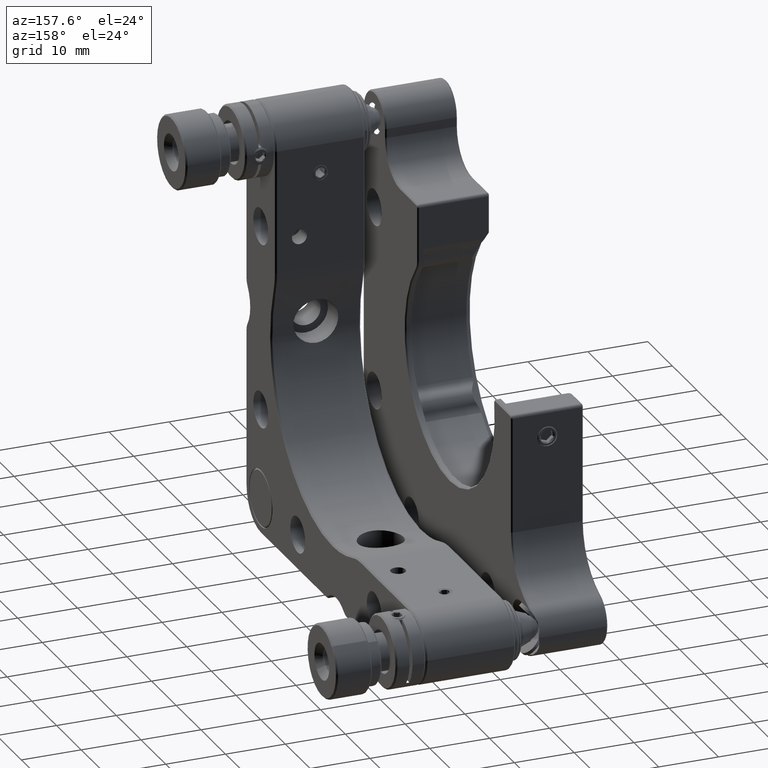
[diagram: clean part render]
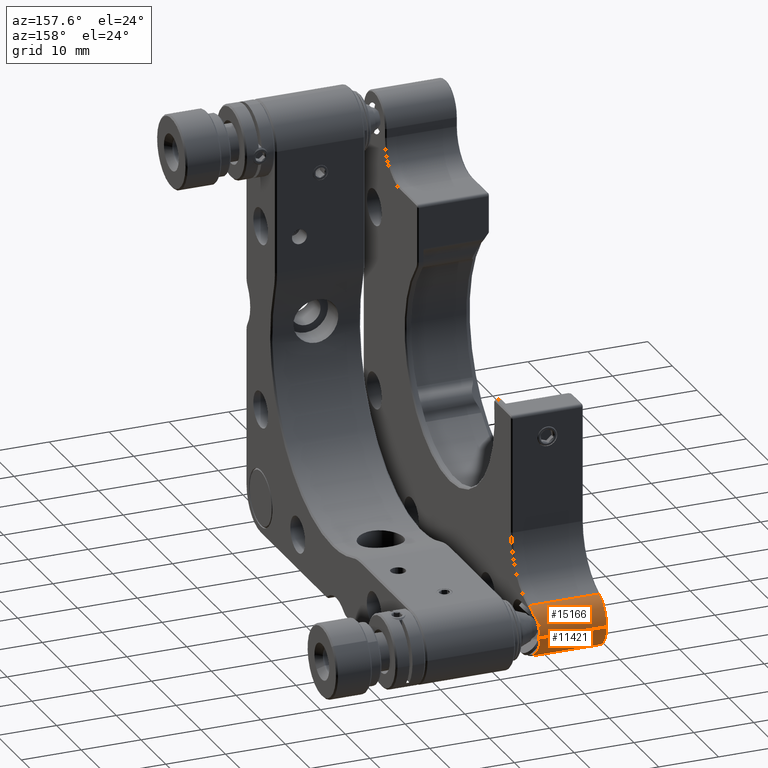
[diagram: same view with one multi-face feature highlighted, each face labeled with its STEP entity id]
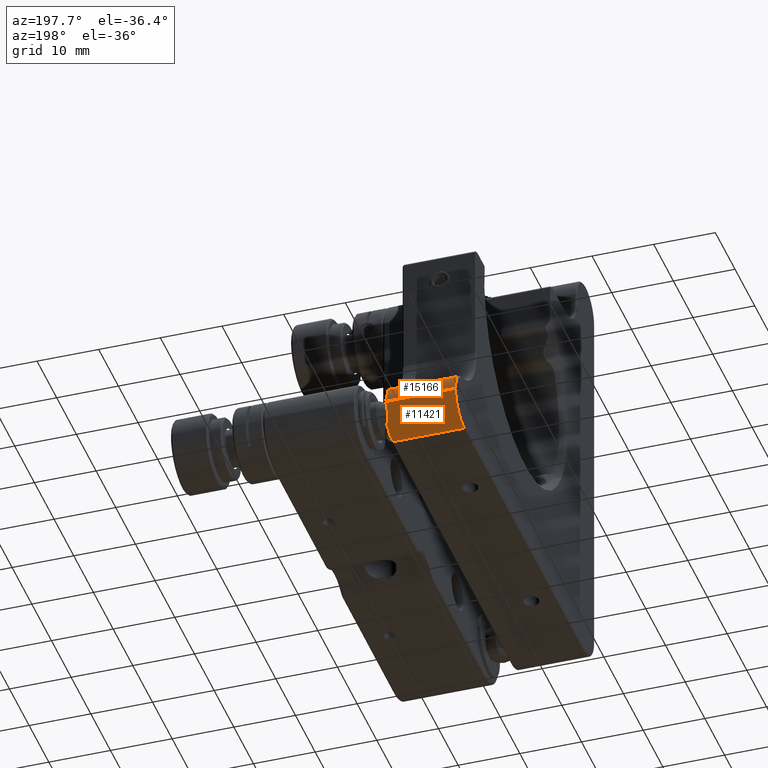
[diagram: same view with one multi-face feature highlighted, each face labeled with its STEP entity id]
A machine part, auxiliary view. The highlighted faces form ONE feature: a constant-radius fillet chain: 2 tangent blend faces with common blend radius 4.5 mm. The faces share edges in the B-rep.
A second angle (auxiliary view) of the same feature is appended — it is thin or edge-on in the first view.
Their STEP definitions:
[1] entity #11421 (Cylinder):
#1179 = CARTESIAN_POINT ( 'NONE',  ( -4.969915169746157879, 32.83099003521454051, 18.85354217601186377 ) ) ;
#1407 = DIRECTION ( 'NONE',  ( -1.000000000000000000, 0.000000000000000000, 0.000000000000000000 ) ) ;
#1477 = CARTESIAN_POINT ( 'NONE',  ( -4.970900697152769609, 33.68292862304677726, 21.50000000000000711 ) ) ;
#2343 = CARTESIAN_POINT ( 'NONE',  ( -4.970900697152769609, 33.68292862304677726, 21.50000000000000711 ) ) ;
#2441 = CARTESIAN_POINT ( 'NONE',  ( -4.670900697152780445, 29.18292862304677726, 21.50000000000000711 ) ) ;
#2664 = CARTESIAN_POINT ( 'NONE',  ( -5.094182898892031019, 33.22991680609042220, 19.51532868438908253 ) ) ;
#2730 = B_SPLINE_CURVE_WITH_KNOTS ( 'NONE', 3,
 ( #13257, #6105, #9784, #1179, #3747, #2664, #4781, #5950, #3594, #7207 ),
 .UNSPECIFIED., .F., .F.,
 ( 4, 2, 2, 2, 4 ),
 ( 5.843079896245652824E-07, 0.0007739095250426000338, 0.001547234742095575507, 0.002320559959148551198, 0.003093885176201526671 ),
 .UNSPECIFIED. ) ;
#2855 = DIRECTION ( 'NONE',  ( 1.000000000000000000, -0.000000000000000000, -0.000000000000000000 ) ) ;
#3438 = CARTESIAN_POINT ( 'NONE',  ( -5.033840859828053738, 33.61998846037148780, 20.75000000000002842 ) ) ;
#3594 = CARTESIAN_POINT ( 'NONE',  ( -5.076993765568806438, 33.57683555463074043, 20.49470396676516515 ) ) ;
#3612 = ORIENTED_EDGE ( 'NONE', *, *, #12394, .T. ) ;
#3747 = CARTESIAN_POINT ( 'NONE',  ( -5.023551513224647991, 32.97558825124925619, 19.06427289514881807 ) ) ;
#3790 = VERTEX_POINT ( 'NONE', #1477 ) ;
#3920 = VERTEX_POINT ( 'NONE', #15190 ) ;
#4318 = DIRECTION ( 'NONE',  ( 1.000000000000000000, 0.000000000000000000, 0.000000000000000000 ) ) ;
#4361 = ORIENTED_EDGE ( 'NONE', *, *, #10954, .F. ) ;
#4781 = CARTESIAN_POINT ( 'NONE',  ( -5.110431024929194876, 33.33700272123084574, 19.75039737068624035 ) ) ;
#4951 = CARTESIAN_POINT ( 'NONE',  ( -5.033840859828053738, 33.61998846037148780, 20.75000000000002842 ) ) ;
#5470 = CARTESIAN_POINT ( 'NONE',  ( -4.470900697152771386, 33.68292862304677726, 21.50000000000000711 ) ) ;
#5950 = CARTESIAN_POINT ( 'NONE',  ( -5.102085919970350325, 33.51069300779657567, 20.23988238493522118 ) ) ;
#6079 = CARTESIAN_POINT ( 'NONE',  ( -4.670900697152780445, 32.16093782629405951, 18.12635787532607168 ) ) ;
#6105 = CARTESIAN_POINT ( 'NONE',  ( -4.759126002802712918, 32.34557114717730286, 18.28933892325495947 ) ) ;
#6111 = ORIENTED_EDGE ( 'NONE', *, *, #12669, .F. ) ;
#6270 = DIRECTION ( 'NONE',  ( 0.000000000000000000, 0.000000000000000000, 1.000000000000000000 ) ) ;
#6406 = CARTESIAN_POINT ( 'NONE',  ( -4.670900697152780445, 29.18292862304677726, 17.00000000000000711 ) ) ;
#6425 = DIRECTION ( 'NONE',  ( -1.000000000000000000, 0.000000000000000000, 0.000000000000000000 ) ) ;
#6457 = VERTEX_POINT ( 'NONE', #10929 ) ;
#6907 = EDGE_CURVE ( 'NONE', #3790, #3920, #12688, .T. ) ;
#7207 = CARTESIAN_POINT ( 'NONE',  ( -5.033840859828053738, 33.61998846037148780, 20.75000000000002842 ) ) ;
#7362 = DIRECTION ( 'NONE',  ( 0.000000000000000000, 0.000000000000000000, 1.000000000000000000 ) ) ;
#7549 = LINE ( 'NONE', #7855, #13459 ) ;
#7855 = CARTESIAN_POINT ( 'NONE',  ( -4.470900697152771386, 29.18292862304677726, 17.00000000000000711 ) ) ;
#7958 = AXIS2_PLACEMENT_3D ( 'NONE', #13412, #1407, #7362 ) ;
#8528 = CARTESIAN_POINT ( 'NONE',  ( -4.991929858824035726, 33.66189946137551914, 20.99794882572938448 ) ) ;
#8792 = AXIS2_PLACEMENT_3D ( 'NONE', #10581, #4318, #15371 ) ;
#9384 = CIRCLE ( 'NONE', #11904, 4.500000000000000888 ) ;
#9549 = EDGE_CURVE ( 'NONE', #6457, #3920, #11807, .T. ) ;
#9551 = CYLINDRICAL_SURFACE ( 'NONE', #7958, 4.500000000000000888 ) ;
#9784 = CARTESIAN_POINT ( 'NONE',  ( -4.837839540645553882, 32.51649543658120933, 18.46694487672950657 ) ) ;
#9828 = EDGE_LOOP ( 'NONE', ( #6111, #12411, #3612, #4361, #11746, #13592 ) ) ;
#10120 = VERTEX_POINT ( 'NONE', #4951 ) ;
#10581 = CARTESIAN_POINT ( 'NONE',  ( -16.27090069715276499, 29.18292862304677726, 21.50000000000000711 ) ) ;
#10624 = VERTEX_POINT ( 'NONE', #6406 ) ;
#10885 = FACE_OUTER_BOUND ( 'NONE', #9828, .T. ) ;
#10929 = CARTESIAN_POINT ( 'NONE',  ( -16.27090069715276499, 29.18292862304677726, 17.00000000000000711 ) ) ;
#10954 = EDGE_CURVE ( 'NONE', #6457, #10624, #7549, .T. ) ;
#11421 = ADVANCED_FACE ( 'NONE', ( #10885 ), #9551, .T. ) ;
#11422 = EDGE_CURVE ( 'NONE', #11672, #10120, #2730, .T. ) ;
#11672 = VERTEX_POINT ( 'NONE', #6079 ) ;
#11746 = ORIENTED_EDGE ( 'NONE', *, *, #9549, .T. ) ;
#11807 = CIRCLE ( 'NONE', #8792, 4.500000000000000888 ) ;
#11904 = AXIS2_PLACEMENT_3D ( 'NONE', #2441, #6425, #6270 ) ;
#12394 = EDGE_CURVE ( 'NONE', #11672, #10624, #9384, .T. ) ;
#12411 = ORIENTED_EDGE ( 'NONE', *, *, #11422, .F. ) ;
#12669 = EDGE_CURVE ( 'NONE', #10120, #3790, #12835, .T. ) ;
#12688 = LINE ( 'NONE', #5470, #15223 ) ;
#12835 =( BOUNDED_CURVE ( )  B_SPLINE_CURVE ( 3, ( #3438, #8528, #15365, #2343 ),
 .UNSPECIFIED., .F., .T. ) 
 B_SPLINE_CURVE_WITH_KNOTS ( ( 4, 4 ),
 ( 2.974144574370108263, 3.141592653589793116 ),
 .UNSPECIFIED. ) 
 CURVE ( )  GEOMETRIC_REPRESENTATION_ITEM ( )  RATIONAL_B_SPLINE_CURVE ( ( 1.000000000000000000, 0.9976647929699735684, 0.9976647929699735684, 1.000000000000000000 ) ) 
 REPRESENTATION_ITEM ( '' )  );
#13257 = CARTESIAN_POINT ( 'NONE',  ( -4.670900697152780445, 32.16093782629405951, 18.12635787532607168 ) ) ;
#13412 = CARTESIAN_POINT ( 'NONE',  ( -4.470900697152771386, 29.18292862304677726, 21.50000000000000711 ) ) ;
#13459 = VECTOR ( 'NONE', #2855, 1000.000000000000000 ) ;
#13592 = ORIENTED_EDGE ( 'NONE', *, *, #6907, .F. ) ;
#15185 = DIRECTION ( 'NONE',  ( -1.000000000000000000, 0.000000000000000000, 0.000000000000000000 ) ) ;
#15190 = CARTESIAN_POINT ( 'NONE',  ( -16.27090069715276499, 33.68292862304677726, 21.50000000000000711 ) ) ;
#15223 = VECTOR ( 'NONE', #15185, 1000.000000000000000 ) ;
#15365 = CARTESIAN_POINT ( 'NONE',  ( -4.970900697152769609, 33.68292862304678437, 21.24853399397588660 ) ) ;
#15371 = DIRECTION ( 'NONE',  ( 0.000000000000000000, 0.000000000000000000, 1.000000000000000000 ) ) ;
[2] entity #15166 (Cylinder):
#140 = EDGE_CURVE ( 'NONE', #3920, #9457, #7156, .T. ) ;
#628 = EDGE_LOOP ( 'NONE', ( #15214, #9987, #5144, #7327, #4432, #15428 ) ) ;
#630 = CARTESIAN_POINT ( 'NONE',  ( -5.033840859828057290, 33.61998846037148780, 22.24999999999998579 ) ) ;
#661 = VECTOR ( 'NONE', #4510, 1000.000000000000000 ) ;
#944 = CIRCLE ( 'NONE', #9699, 4.500000000000000888 ) ;
#992 = EDGE_CURVE ( 'NONE', #9457, #6167, #4591, .T. ) ;
#1477 = CARTESIAN_POINT ( 'NONE',  ( -4.970900697152769609, 33.68292862304677726, 21.50000000000000711 ) ) ;
#2014 = CARTESIAN_POINT ( 'NONE',  ( -4.670900697152780445, 29.18292862304677726, 21.49999999999999645 ) ) ;
#2131 = VERTEX_POINT ( 'NONE', #12906 ) ;
#2371 = DIRECTION ( 'NONE',  ( -1.000000000000000000, 0.000000000000000000, 0.000000000000000000 ) ) ;
#3605 =( BOUNDED_CURVE ( )  B_SPLINE_CURVE ( 3, ( #12390, #6568, #11356, #630 ),
 .UNSPECIFIED., .F., .T. ) 
 B_SPLINE_CURVE_WITH_KNOTS ( ( 4, 4 ),
 ( 3.141592653589796225, 3.309040732809480190 ),
 .UNSPECIFIED. ) 
 CURVE ( )  GEOMETRIC_REPRESENTATION_ITEM ( )  RATIONAL_B_SPLINE_CURVE ( ( 1.000000000000000000, 0.9976647929699735684, 0.9976647929699735684, 1.000000000000000000 ) ) 
 REPRESENTATION_ITEM ( '' )  );
#3616 = DIRECTION ( 'NONE',  ( 0.000000000000000000, 0.000000000000000000, 1.000000000000000000 ) ) ;
#3790 = VERTEX_POINT ( 'NONE', #1477 ) ;
#3920 = VERTEX_POINT ( 'NONE', #15190 ) ;
#4365 = CARTESIAN_POINT ( 'NONE',  ( -4.847337455431588893, 32.53017547718014413, 24.54770561988522815 ) ) ;
#4432 = ORIENTED_EDGE ( 'NONE', *, *, #992, .T. ) ;
#4510 = DIRECTION ( 'NONE',  ( 1.000000000000000000, -0.000000000000000000, -0.000000000000000000 ) ) ;
#4591 = LINE ( 'NONE', #5533, #661 ) ;
#4693 = DIRECTION ( 'NONE',  ( -1.000000000000000000, 0.000000000000000000, 0.000000000000000000 ) ) ;
#4800 = DIRECTION ( 'NONE',  ( 0.000000000000000000, 1.541976423090494844E-15, 1.000000000000000000 ) ) ;
#4805 = CARTESIAN_POINT ( 'NONE',  ( -4.470900697152771386, 29.18292862304677726, 21.49999999999999645 ) ) ;
#5144 = ORIENTED_EDGE ( 'NONE', *, *, #6907, .T. ) ;
#5469 = CARTESIAN_POINT ( 'NONE',  ( -5.076898368771277426, 33.57693095142826678, 22.50473165816961085 ) ) ;
#5470 = CARTESIAN_POINT ( 'NONE',  ( -4.470900697152771386, 33.68292862304677726, 21.50000000000000711 ) ) ;
#5533 = CARTESIAN_POINT ( 'NONE',  ( -4.470900697152771386, 30.59499758856401286, 25.77271122785322888 ) ) ;
#6167 = VERTEX_POINT ( 'NONE', #12138 ) ;
#6224 = EDGE_CURVE ( 'NONE', #2131, #10418, #7435, .T. ) ;
#6568 = CARTESIAN_POINT ( 'NONE',  ( -4.970900697152770498, 33.68292862304678437, 21.75146600602413116 ) ) ;
#6575 = CARTESIAN_POINT ( 'NONE',  ( -4.670900697152780445, 32.16093782629403819, 24.87364212467394609 ) ) ;
#6907 = EDGE_CURVE ( 'NONE', #3790, #3920, #12688, .T. ) ;
#6957 = DIRECTION ( 'NONE',  ( 0.000000000000000000, 0.000000000000000000, 1.000000000000000000 ) ) ;
#7156 = CIRCLE ( 'NONE', #13187, 4.500000000000000888 ) ;
#7327 = ORIENTED_EDGE ( 'NONE', *, *, #140, .T. ) ;
#7435 = B_SPLINE_CURVE_WITH_KNOTS ( 'NONE', 3,
 ( #15101, #5469, #11646, #11414, #14953, #15022, #4365, #9133 ),
 .UNSPECIFIED., .F., .F.,
 ( 4, 2, 2, 4 ),
 ( 2.027171842242324716E-07, 0.0007747843937992246076, 0.001549366070414224953, 0.003098529423644215235 ),
 .UNSPECIFIED. ) ;
#8559 = CARTESIAN_POINT ( 'NONE',  ( -16.27090069715276499, 29.18292862304677726, 21.49999999999999645 ) ) ;
#9133 = CARTESIAN_POINT ( 'NONE',  ( -4.670900697152780445, 32.16093782629403819, 24.87364212467394609 ) ) ;
#9457 = VERTEX_POINT ( 'NONE', #15328 ) ;
#9652 = FACE_OUTER_BOUND ( 'NONE', #628, .T. ) ;
#9699 = AXIS2_PLACEMENT_3D ( 'NONE', #2014, #4693, #6957 ) ;
#9987 = ORIENTED_EDGE ( 'NONE', *, *, #11511, .F. ) ;
#10418 = VERTEX_POINT ( 'NONE', #6575 ) ;
#11356 = CARTESIAN_POINT ( 'NONE',  ( -4.991929858824036614, 33.66189946137551914, 22.00205117427063328 ) ) ;
#11414 = CARTESIAN_POINT ( 'NONE',  ( -5.110675222901713610, 33.34027654243926975, 23.24164311183329445 ) ) ;
#11511 = EDGE_CURVE ( 'NONE', #3790, #2131, #3605, .T. ) ;
#11634 = AXIS2_PLACEMENT_3D ( 'NONE', #4805, #2371, #3616 ) ;
#11646 = CARTESIAN_POINT ( 'NONE',  ( -5.101590153053921384, 33.51240993382458555, 22.75397529142285791 ) ) ;
#12138 = CARTESIAN_POINT ( 'NONE',  ( -4.670900697152780445, 30.59499758856401286, 25.77271122785322888 ) ) ;
#12390 = CARTESIAN_POINT ( 'NONE',  ( -4.970900697152769609, 33.68292862304677726, 21.50000000000000711 ) ) ;
#12688 = LINE ( 'NONE', #5470, #15223 ) ;
#12906 = CARTESIAN_POINT ( 'NONE',  ( -5.033840859828057290, 33.61998846037148780, 22.24999999999998579 ) ) ;
#13187 = AXIS2_PLACEMENT_3D ( 'NONE', #8559, #13433, #4800 ) ;
#13433 = DIRECTION ( 'NONE',  ( 1.000000000000000000, 0.000000000000000000, 0.000000000000000000 ) ) ;
#14235 = CYLINDRICAL_SURFACE ( 'NONE', #11634, 4.500000000000000888 ) ;
#14756 = EDGE_CURVE ( 'NONE', #6167, #10418, #944, .T. ) ;
#14953 = CARTESIAN_POINT ( 'NONE',  ( -5.094322187440129213, 33.23106112790760847, 23.48203481813541416 ) ) ;
#15022 = CARTESIAN_POINT ( 'NONE',  ( -4.990068001555673760, 32.85375497352296748, 24.15299624830053915 ) ) ;
#15101 = CARTESIAN_POINT ( 'NONE',  ( -5.033840859828057290, 33.61998846037148780, 22.24999999999998579 ) ) ;
#15166 = ADVANCED_FACE ( 'NONE', ( #9652 ), #14235, .T. ) ;
#15185 = DIRECTION ( 'NONE',  ( -1.000000000000000000, 0.000000000000000000, 0.000000000000000000 ) ) ;
#15190 = CARTESIAN_POINT ( 'NONE',  ( -16.27090069715276499, 33.68292862304677726, 21.50000000000000711 ) ) ;
#15214 = ORIENTED_EDGE ( 'NONE', *, *, #6224, .F. ) ;
#15223 = VECTOR ( 'NONE', #15185, 1000.000000000000000 ) ;
#15328 = CARTESIAN_POINT ( 'NONE',  ( -16.27090069715276499, 30.59499758856401286, 25.77271122785322888 ) ) ;
#15428 = ORIENTED_EDGE ( 'NONE', *, *, #14756, .T. ) ;